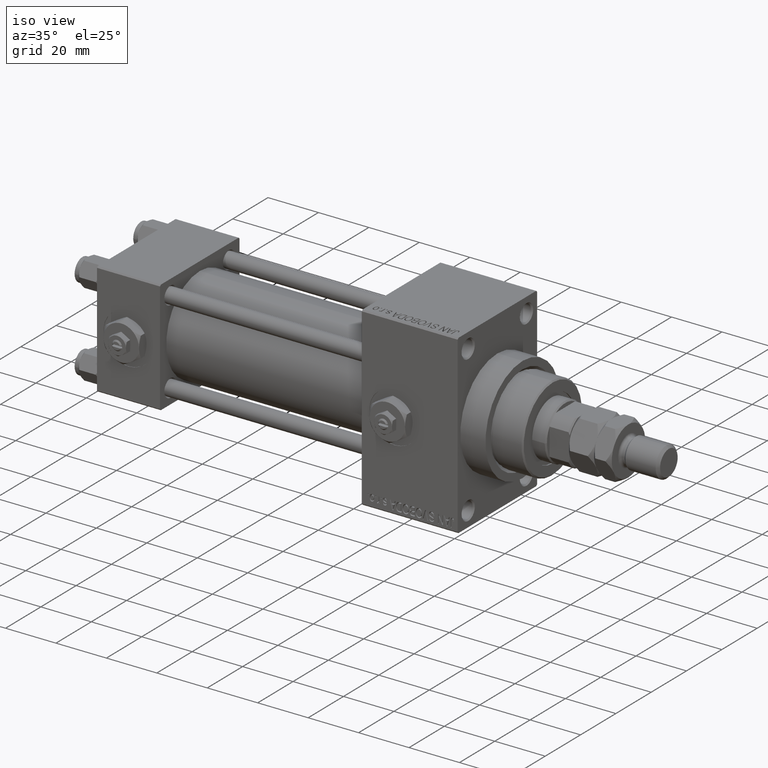
[diagram: clean part render]
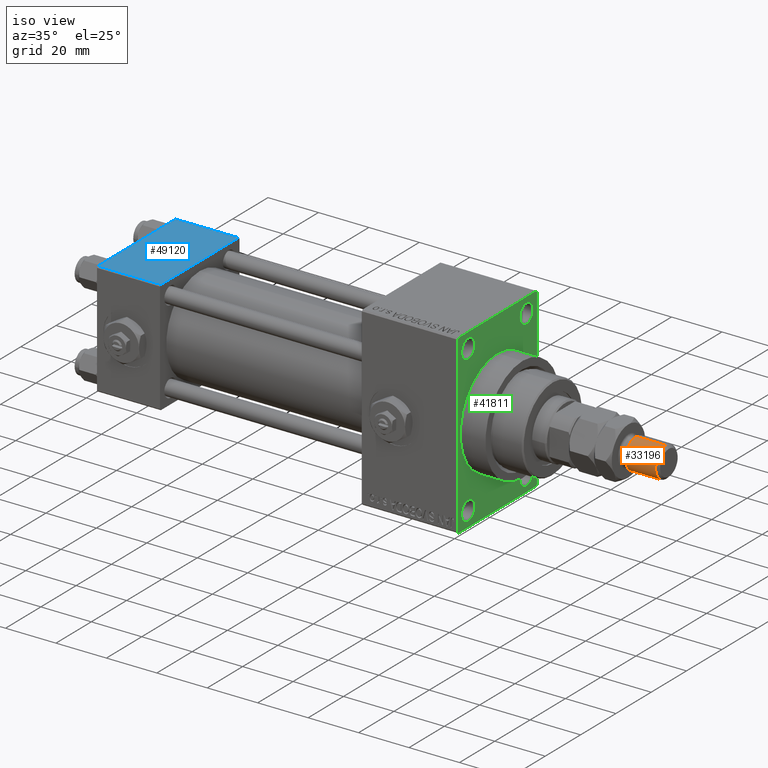
[diagram: same view with three faces highlighted in distinct colors, each labeled with its STEP entity id]
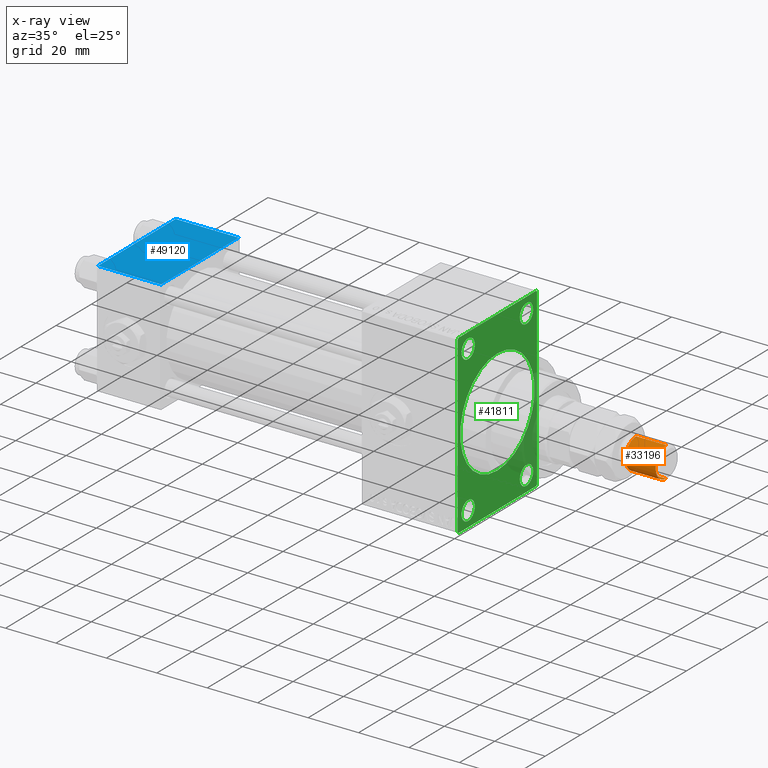
[diagram: x-ray of the same camera — body ghosted, the three highlighted faces saturated]
A machine part, iso view with three faces highlighted in distinct colors.
The next image is the same camera in x-ray (body ghosted, the three faces saturated) — at least one of them is partly hidden behind the body in this view.
Their STEP definitions:

[orange] entity #33196 — the highlighted cylindrical surface (edge-blend (fillet) strip) has radius 6 mm, axis along (-1, -0, 0).
#2152 = DIRECTION ( 'NONE',  ( -0.000000000000000000, -0.000000000000000000, 1.000000000000000000 ) ) ;
#2602 = EDGE_LOOP ( 'NONE', ( #9044, #19886, #22050, #4685 ) ) ;
#4137 = AXIS2_PLACEMENT_3D ( 'NONE', #44471, #5264, #20371 ) ;
#4685 = ORIENTED_EDGE ( 'NONE', *, *, #29041, .T. ) ;
#5264 = DIRECTION ( 'NONE',  ( 0.000000000000000000, 0.000000000000000000, -1.000000000000000000 ) ) ;
#5302 = EDGE_CURVE ( 'NONE', #24596, #40697, #48355, .T. ) ;
#6121 = DIRECTION ( 'NONE',  ( -0.000000000000000000, -0.000000000000000000, -1.000000000000000000 ) ) ;
#9044 = ORIENTED_EDGE ( 'NONE', *, *, #34259, .F. ) ;
#9376 = DIRECTION ( 'NONE',  ( -0.000000000000000000, -0.000000000000000000, -1.000000000000000000 ) ) ;
#9975 = FACE_OUTER_BOUND ( 'NONE', #2602, .T. ) ;
#12683 = CARTESIAN_POINT ( 'NONE',  ( -6.000000000000000888, 0.000000000000000000, 33.00000000000000000 ) ) ;
#17156 = CYLINDRICAL_SURFACE ( 'NONE', #50270, 6.000000000000000888 ) ;
#17622 = EDGE_CURVE ( 'NONE', #40697, #39640, #44470, .T. ) ;
#19085 = CARTESIAN_POINT ( 'NONE',  ( -6.000000000000000888, 0.000000000000000000, 32.00000000000000000 ) ) ;
#19886 = ORIENTED_EDGE ( 'NONE', *, *, #5302, .T. ) ;
#20371 = DIRECTION ( 'NONE',  ( 1.000000000000000000, 0.000000000000000000, 0.000000000000000000 ) ) ;
#22050 = ORIENTED_EDGE ( 'NONE', *, *, #17622, .T. ) ;
#24596 = VERTEX_POINT ( 'NONE', #26364 ) ;
#26364 = CARTESIAN_POINT ( 'NONE',  ( 6.000000000000000888, 7.347880794884120722E-16, 32.00000000000000000 ) ) ;
#28352 = DIRECTION ( 'NONE',  ( -0.000000000000000000, -0.000000000000000000, -1.000000000000000000 ) ) ;
#29041 = EDGE_CURVE ( 'NONE', #39640, #36694, #48585, .T. ) ;
#30568 = AXIS2_PLACEMENT_3D ( 'NONE', #33173, #2152, #48822 ) ;
#33173 = CARTESIAN_POINT ( 'NONE',  ( 0.000000000000000000, 0.000000000000000000, 20.00000000000000711 ) ) ;
#33196 = ADVANCED_FACE ( 'NONE', ( #9975 ), #17156, .T. ) ;
#33529 = DIRECTION ( 'NONE',  ( -1.000000000000000000, 0.000000000000000000, 0.000000000000000000 ) ) ;
#33936 = VECTOR ( 'NONE', #28352, 1000.000000000000000 ) ;
#34259 = EDGE_CURVE ( 'NONE', #24596, #36694, #39139, .T. ) ;
#35174 = CARTESIAN_POINT ( 'NONE',  ( 6.000000000000000888, 7.347880794884120722E-16, 20.00000000000000711 ) ) ;
#35534 = CARTESIAN_POINT ( 'NONE',  ( 6.000000000000000888, 7.347880794884120722E-16, 33.00000000000000000 ) ) ;
#36694 = VERTEX_POINT ( 'NONE', #35174 ) ;
#38139 = CARTESIAN_POINT ( 'NONE',  ( -6.000000000000000888, 0.000000000000000000, 20.00000000000000711 ) ) ;
#39139 = LINE ( 'NONE', #35534, #33936 ) ;
#39640 = VERTEX_POINT ( 'NONE', #38139 ) ;
#40697 = VERTEX_POINT ( 'NONE', #19085 ) ;
#41233 = CARTESIAN_POINT ( 'NONE',  ( 0.000000000000000000, 0.000000000000000000, 33.00000000000000000 ) ) ;
#44470 = LINE ( 'NONE', #12683, #45370 ) ;
#44471 = CARTESIAN_POINT ( 'NONE',  ( 0.000000000000000000, 0.000000000000000000, 32.00000000000000000 ) ) ;
#45370 = VECTOR ( 'NONE', #9376, 1000.000000000000000 ) ;
#48355 = CIRCLE ( 'NONE', #4137, 6.000000000000000888 ) ;
#48585 = CIRCLE ( 'NONE', #30568, 6.000000000000000888 ) ;
#48822 = DIRECTION ( 'NONE',  ( 1.000000000000000000, 0.000000000000000000, 0.000000000000000000 ) ) ;
#50270 = AXIS2_PLACEMENT_3D ( 'NONE', #41233, #6121, #33529 ) ;

[blue] entity #49120 — the highlighted planar face has unit normal (0, 0, -1).
#224 = CARTESIAN_POINT ( 'NONE',  ( 25.00000000000000000, 22.50000000000000000, 22.50000000000000355 ) ) ;
#523 = CARTESIAN_POINT ( 'NONE',  ( 0.000000000000000000, -21.99999999999997868, 22.50000000000000000 ) ) ;
#1207 = ORIENTED_EDGE ( 'NONE', *, *, #7700, .T. ) ;
#1647 = ORIENTED_EDGE ( 'NONE', *, *, #3038, .T. ) ;
#3038 = EDGE_CURVE ( 'NONE', #14910, #11067, #10270, .T. ) ;
#4332 = DIRECTION ( 'NONE',  ( 0.000000000000000000, -1.000000000000000000, -7.709882115452476934E-17 ) ) ;
#5912 = CARTESIAN_POINT ( 'NONE',  ( 25.00000000000000000, -21.99999999999999289, 22.50000000000000000 ) ) ;
#7700 = EDGE_CURVE ( 'NONE', #43389, #14910, #14841, .T. ) ;
#7918 = VECTOR ( 'NONE', #4332, 1000.000000000000000 ) ;
#10270 = LINE ( 'NONE', #5912, #36794 ) ;
#11067 = VERTEX_POINT ( 'NONE', #49467 ) ;
#11573 = VECTOR ( 'NONE', #27113, 1000.000000000000000 ) ;
#11682 = ORIENTED_EDGE ( 'NONE', *, *, #49796, .T. ) ;
#11892 = PLANE ( 'NONE',  #16375 ) ;
#12137 = FACE_OUTER_BOUND ( 'NONE', #15347, .T. ) ;
#14099 = DIRECTION ( 'NONE',  ( 1.000000000000000000, 0.000000000000000000, 0.000000000000000000 ) ) ;
#14584 = CARTESIAN_POINT ( 'NONE',  ( 0.000000000000000000, 22.50000000000000000, 22.50000000000000355 ) ) ;
#14841 = LINE ( 'NONE', #14584, #11573 ) ;
#14910 = VERTEX_POINT ( 'NONE', #523 ) ;
#15347 = EDGE_LOOP ( 'NONE', ( #1207, #1647, #21904, #11682 ) ) ;
#16375 = AXIS2_PLACEMENT_3D ( 'NONE', #30159, #27512, #22225 ) ;
#20991 = DIRECTION ( 'NONE',  ( -1.000000000000000000, 0.000000000000000000, 0.000000000000000000 ) ) ;
#21904 = ORIENTED_EDGE ( 'NONE', *, *, #40251, .F. ) ;
#22225 = DIRECTION ( 'NONE',  ( 0.000000000000000000, 1.000000000000000000, 7.709882115452476934E-17 ) ) ;
#25932 = CARTESIAN_POINT ( 'NONE',  ( 0.000000000000000000, 21.99999999999999289, 22.50000000000000355 ) ) ;
#27113 = DIRECTION ( 'NONE',  ( 0.000000000000000000, -1.000000000000000000, -7.709882115452476934E-17 ) ) ;
#27512 = DIRECTION ( 'NONE',  ( 0.000000000000000000, 7.709882115452476934E-17, -1.000000000000000000 ) ) ;
#27900 = LINE ( 'NONE', #36114, #43406 ) ;
#30159 = CARTESIAN_POINT ( 'NONE',  ( 25.00000000000000000, 22.50000000000000000, 22.50000000000000355 ) ) ;
#34408 = CARTESIAN_POINT ( 'NONE',  ( 25.00000000000000000, 21.99999999999999289, 22.50000000000000355 ) ) ;
#36114 = CARTESIAN_POINT ( 'NONE',  ( 0.000000000000000000, 21.99999999999999289, 22.50000000000000355 ) ) ;
#36794 = VECTOR ( 'NONE', #14099, 1000.000000000000000 ) ;
#38698 = LINE ( 'NONE', #224, #7918 ) ;
#40251 = EDGE_CURVE ( 'NONE', #47219, #11067, #38698, .T. ) ;
#43389 = VERTEX_POINT ( 'NONE', #25932 ) ;
#43406 = VECTOR ( 'NONE', #20991, 1000.000000000000000 ) ;
#47219 = VERTEX_POINT ( 'NONE', #34408 ) ;
#49120 = ADVANCED_FACE ( 'NONE', ( #12137 ), #11892, .F. ) ;
#49467 = CARTESIAN_POINT ( 'NONE',  ( 25.00000000000000000, -21.99999999999997868, 22.50000000000000000 ) ) ;
#49796 = EDGE_CURVE ( 'NONE', #47219, #43389, #27900, .T. ) ;

[green] entity #41811 — the highlighted planar face has unit normal (-1, 0, 0).
#150 = DIRECTION ( 'NONE',  ( -1.000000000000000000, -0.000000000000000000, -0.000000000000000000 ) ) ;
#398 = DIRECTION ( 'NONE',  ( 0.000000000000000000, 0.000000000000000000, 1.000000000000000000 ) ) ;
#498 = CARTESIAN_POINT ( 'NONE',  ( 143.0000000000000284, -21.99999999999998934, 35.00000000000000000 ) ) ;
#934 = CARTESIAN_POINT ( 'NONE',  ( 143.0000000000000284, 22.49999999999999645, 34.50000000000000000 ) ) ;
#967 = ORIENTED_EDGE ( 'NONE', *, *, #32834, .F. ) ;
#1305 = VECTOR ( 'NONE', #38044, 1000.000000000000000 ) ;
#1467 = ORIENTED_EDGE ( 'NONE', *, *, #39226, .T. ) ;
#1561 = CIRCLE ( 'NONE', #26943, 3.750000000000152323 ) ;
#2023 = DIRECTION ( 'NONE',  ( -0.000000000000000000, 0.7071067811865474617, 0.7071067811865474617 ) ) ;
#2653 = DIRECTION ( 'NONE',  ( -1.000000000000000000, 0.000000000000000000, -0.000000000000000000 ) ) ;
#2786 = CIRCLE ( 'NONE', #40451, 3.750000000000159428 ) ;
#3003 = ORIENTED_EDGE ( 'NONE', *, *, #14953, .F. ) ;
#3578 = VECTOR ( 'NONE', #33712, 1000.000000000000114 ) ;
#4120 = CARTESIAN_POINT ( 'NONE',  ( 143.0000000000000284, -16.50000000000000000, -25.24999999999984013 ) ) ;
#4388 = VECTOR ( 'NONE', #26288, 1000.000000000000000 ) ;
#4417 = VERTEX_POINT ( 'NONE', #498 ) ;
#4887 = EDGE_CURVE ( 'NONE', #27919, #45364, #45029, .T. ) ;
#5277 = AXIS2_PLACEMENT_3D ( 'NONE', #6876, #10471, #26078 ) ;
#5282 = CIRCLE ( 'NONE', #20814, 3.750000000000159428 ) ;
#5662 = DIRECTION ( 'NONE',  ( 0.000000000000000000, 0.000000000000000000, -1.000000000000000000 ) ) ;
#5768 = VECTOR ( 'NONE', #9931, 1000.000000000000114 ) ;
#6012 = CIRCLE ( 'NONE', #37916, 21.00000000000000000 ) ;
#6260 = FACE_BOUND ( 'NONE', #33798, .T. ) ;
#6322 = VECTOR ( 'NONE', #19830, 1000.000000000000114 ) ;
#6358 = DIRECTION ( 'NONE',  ( 0.000000000000000000, 0.000000000000000000, 1.000000000000000000 ) ) ;
#6403 = DIRECTION ( 'NONE',  ( 0.000000000000000000, 0.000000000000000000, -1.000000000000000000 ) ) ;
#6852 = CIRCLE ( 'NONE', #35489, 3.750000000000159428 ) ;
#6876 = CARTESIAN_POINT ( 'NONE',  ( 143.0000000000000284, 0.000000000000000000, 0.000000000000000000 ) ) ;
#6917 = CIRCLE ( 'NONE', #5277, 21.00000000000000000 ) ;
#7590 = DIRECTION ( 'NONE',  ( 0.000000000000000000, 0.000000000000000000, 1.000000000000000000 ) ) ;
#7889 = CARTESIAN_POINT ( 'NONE',  ( 143.0000000000000284, -16.50000000000000000, 32.75000000000016342 ) ) ;
#8475 = ORIENTED_EDGE ( 'NONE', *, *, #38219, .T. ) ;
#9262 = DIRECTION ( 'NONE',  ( 1.000000000000000000, 0.000000000000000000, 0.000000000000000000 ) ) ;
#9591 = AXIS2_PLACEMENT_3D ( 'NONE', #36855, #33243, #7590 ) ;
#9818 = DIRECTION ( 'NONE',  ( -1.000000000000000000, -0.000000000000000000, -0.000000000000000000 ) ) ;
#9919 = EDGE_LOOP ( 'NONE', ( #8475, #34555, #967, #38765, #30352, #19529, #22551, #29122 ) ) ;
#9931 = DIRECTION ( 'NONE',  ( 0.000000000000000000, 0.7071067811865474617, -0.7071067811865474617 ) ) ;
#10420 = CARTESIAN_POINT ( 'NONE',  ( 143.0000000000000284, 22.49999999999999645, 35.00000000000000000 ) ) ;
#10471 = DIRECTION ( 'NONE',  ( 1.000000000000000000, 0.000000000000000000, 0.000000000000000000 ) ) ;
#10532 = VECTOR ( 'NONE', #6403, 1000.000000000000000 ) ;
#10574 = AXIS2_PLACEMENT_3D ( 'NONE', #30799, #27710, #19270 ) ;
#10684 = DIRECTION ( 'NONE',  ( 0.000000000000000000, 0.000000000000000000, 1.000000000000000000 ) ) ;
#10862 = PLANE ( 'NONE',  #49751 ) ;
#11905 = CARTESIAN_POINT ( 'NONE',  ( 143.0000000000000284, 21.99999999999999645, 35.00000000000000000 ) ) ;
#12207 = ORIENTED_EDGE ( 'NONE', *, *, #33304, .F. ) ;
#13331 = EDGE_CURVE ( 'NONE', #39930, #18995, #6852, .T. ) ;
#13442 = EDGE_CURVE ( 'NONE', #31925, #4417, #45786, .T. ) ;
#13675 = EDGE_LOOP ( 'NONE', ( #40853, #39155 ) ) ;
#13694 = FACE_BOUND ( 'NONE', #13675, .T. ) ;
#14034 = ORIENTED_EDGE ( 'NONE', *, *, #44239, .T. ) ;
#14113 = LINE ( 'NONE', #29730, #45442 ) ;
#14232 = CARTESIAN_POINT ( 'NONE',  ( 143.0000000000000284, -16.50000000000000000, -32.75000000000015632 ) ) ;
#14869 = CARTESIAN_POINT ( 'NONE',  ( 143.0000000000000284, 0.000000000000000000, 21.00000000000000000 ) ) ;
#14889 = VERTEX_POINT ( 'NONE', #23094 ) ;
#14953 = EDGE_CURVE ( 'NONE', #27095, #49702, #6012, .T. ) ;
#15305 = ORIENTED_EDGE ( 'NONE', *, *, #32179, .T. ) ;
#16147 = CARTESIAN_POINT ( 'NONE',  ( 143.0000000000000284, 16.50000000000000000, 25.24999999999984723 ) ) ;
#16455 = VERTEX_POINT ( 'NONE', #21970 ) ;
#16535 = EDGE_CURVE ( 'NONE', #4417, #19171, #37074, .T. ) ;
#16813 = CARTESIAN_POINT ( 'NONE',  ( 143.0000000000000284, -16.50000000000000000, 29.00000000000000711 ) ) ;
#17374 = EDGE_CURVE ( 'NONE', #16455, #33876, #2786, .T. ) ;
#17546 = LINE ( 'NONE', #49315, #1305 ) ;
#17629 = CIRCLE ( 'NONE', #29870, 3.750000000000155875 ) ;
#17850 = CARTESIAN_POINT ( 'NONE',  ( 143.0000000000000284, 16.50000000000000000, -28.99999999999999289 ) ) ;
#18995 = VERTEX_POINT ( 'NONE', #4120 ) ;
#19171 = VERTEX_POINT ( 'NONE', #30709 ) ;
#19270 = DIRECTION ( 'NONE',  ( 0.000000000000000000, 0.000000000000000000, 1.000000000000000000 ) ) ;
#19529 = ORIENTED_EDGE ( 'NONE', *, *, #40711, .T. ) ;
#19602 = EDGE_LOOP ( 'NONE', ( #15305, #40785 ) ) ;
#19830 = DIRECTION ( 'NONE',  ( 0.000000000000000000, -0.7071067811865474617, 0.7071067811865474617 ) ) ;
#20207 = CIRCLE ( 'NONE', #9591, 3.750000000000152323 ) ;
#20353 = CARTESIAN_POINT ( 'NONE',  ( 143.0000000000000284, 16.50000000000000000, -32.75000000000015632 ) ) ;
#20539 = ORIENTED_EDGE ( 'NONE', *, *, #17374, .T. ) ;
#20814 = AXIS2_PLACEMENT_3D ( 'NONE', #35519, #35273, #398 ) ;
#21769 = CARTESIAN_POINT ( 'NONE',  ( 143.0000000000000284, 22.49999999999999645, 35.00000000000000000 ) ) ;
#21970 = CARTESIAN_POINT ( 'NONE',  ( 143.0000000000000284, 16.50000000000000000, -25.24999999999984013 ) ) ;
#22551 = ORIENTED_EDGE ( 'NONE', *, *, #13442, .T. ) ;
#23094 = CARTESIAN_POINT ( 'NONE',  ( 143.0000000000000284, 21.99999999999999645, -35.00000000000000000 ) ) ;
#23435 = EDGE_LOOP ( 'NONE', ( #24658, #20539 ) ) ;
#23464 = VERTEX_POINT ( 'NONE', #16147 ) ;
#24658 = ORIENTED_EDGE ( 'NONE', *, *, #30922, .T. ) ;
#24863 = CARTESIAN_POINT ( 'NONE',  ( 143.0000000000000284, -16.50000000000000000, 25.24999999999985434 ) ) ;
#25717 = FACE_BOUND ( 'NONE', #46854, .T. ) ;
#25845 = CARTESIAN_POINT ( 'NONE',  ( 143.0000000000000284, 22.49999999999999645, -34.50000000000000000 ) ) ;
#26078 = DIRECTION ( 'NONE',  ( 0.000000000000000000, 0.000000000000000000, -1.000000000000000000 ) ) ;
#26127 = CARTESIAN_POINT ( 'NONE',  ( 143.0000000000000284, -21.99999999999997513, -35.00000000000000000 ) ) ;
#26288 = DIRECTION ( 'NONE',  ( 0.000000000000000000, -1.000000000000000000, 0.000000000000000000 ) ) ;
#26943 = AXIS2_PLACEMENT_3D ( 'NONE', #16813, #150, #43725 ) ;
#27095 = VERTEX_POINT ( 'NONE', #45000 ) ;
#27710 = DIRECTION ( 'NONE',  ( -1.000000000000000000, -0.000000000000000000, -0.000000000000000000 ) ) ;
#27781 = LINE ( 'NONE', #11905, #6322 ) ;
#27919 = VERTEX_POINT ( 'NONE', #48362 ) ;
#28478 = CIRCLE ( 'NONE', #39982, 3.750000000000155875 ) ;
#28637 = VERTEX_POINT ( 'NONE', #7889 ) ;
#28869 = CARTESIAN_POINT ( 'NONE',  ( 143.0000000000000284, -21.99999999999998934, -35.00000000000000000 ) ) ;
#28978 = DIRECTION ( 'NONE',  ( 0.000000000000000000, -1.000000000000000000, 0.000000000000000000 ) ) ;
#29121 = DIRECTION ( 'NONE',  ( -1.000000000000000000, -0.000000000000000000, -0.000000000000000000 ) ) ;
#29122 = ORIENTED_EDGE ( 'NONE', *, *, #16535, .T. ) ;
#29304 = FACE_BOUND ( 'NONE', #19602, .T. ) ;
#29611 = CARTESIAN_POINT ( 'NONE',  ( 143.0000000000000284, -22.50000000000000355, 34.50000000000000000 ) ) ;
#29730 = CARTESIAN_POINT ( 'NONE',  ( 143.0000000000000284, 22.49999999999999645, -35.00000000000000000 ) ) ;
#29870 = AXIS2_PLACEMENT_3D ( 'NONE', #34528, #30168, #6358 ) ;
#30063 = FACE_BOUND ( 'NONE', #23435, .T. ) ;
#30168 = DIRECTION ( 'NONE',  ( -1.000000000000000000, -0.000000000000000000, -0.000000000000000000 ) ) ;
#30352 = ORIENTED_EDGE ( 'NONE', *, *, #43713, .F. ) ;
#30709 = CARTESIAN_POINT ( 'NONE',  ( 143.0000000000000284, -22.50000000000000355, 34.50000000000000000 ) ) ;
#30799 = CARTESIAN_POINT ( 'NONE',  ( 143.0000000000000284, -16.50000000000000000, -28.99999999999999289 ) ) ;
#30922 = EDGE_CURVE ( 'NONE', #33876, #16455, #5282, .T. ) ;
#31437 = DIRECTION ( 'NONE',  ( -1.000000000000000000, -0.000000000000000000, -0.000000000000000000 ) ) ;
#31925 = VERTEX_POINT ( 'NONE', #43288 ) ;
#32179 = EDGE_CURVE ( 'NONE', #23464, #43381, #17629, .T. ) ;
#32629 = CARTESIAN_POINT ( 'NONE',  ( 143.0000000000000284, 22.49999999999999645, -34.50000000000000000 ) ) ;
#32834 = EDGE_CURVE ( 'NONE', #14889, #45364, #14113, .T. ) ;
#33243 = DIRECTION ( 'NONE',  ( -1.000000000000000000, -0.000000000000000000, -0.000000000000000000 ) ) ;
#33304 = EDGE_CURVE ( 'NONE', #49702, #27095, #6917, .T. ) ;
#33712 = DIRECTION ( 'NONE',  ( -0.000000000000000000, -0.7071067811865474617, -0.7071067811865474617 ) ) ;
#33798 = EDGE_LOOP ( 'NONE', ( #12207, #3003 ) ) ;
#33876 = VERTEX_POINT ( 'NONE', #20353 ) ;
#34372 = VERTEX_POINT ( 'NONE', #934 ) ;
#34528 = CARTESIAN_POINT ( 'NONE',  ( 143.0000000000000284, 16.50000000000000000, 29.00000000000000355 ) ) ;
#34555 = ORIENTED_EDGE ( 'NONE', *, *, #4887, .T. ) ;
#35273 = DIRECTION ( 'NONE',  ( -1.000000000000000000, -0.000000000000000000, -0.000000000000000000 ) ) ;
#35489 = AXIS2_PLACEMENT_3D ( 'NONE', #39404, #31437, #50692 ) ;
#35519 = CARTESIAN_POINT ( 'NONE',  ( 143.0000000000000284, 16.50000000000000000, -28.99999999999999289 ) ) ;
#36517 = VECTOR ( 'NONE', #2023, 1000.000000000000114 ) ;
#36855 = CARTESIAN_POINT ( 'NONE',  ( 143.0000000000000284, -16.50000000000000000, 29.00000000000000711 ) ) ;
#37074 = LINE ( 'NONE', #29611, #3578 ) ;
#37274 = FACE_OUTER_BOUND ( 'NONE', #9919, .T. ) ;
#37902 = EDGE_CURVE ( 'NONE', #14889, #49199, #44342, .T. ) ;
#37916 = AXIS2_PLACEMENT_3D ( 'NONE', #43857, #9262, #5662 ) ;
#38044 = DIRECTION ( 'NONE',  ( 0.000000000000000000, 0.000000000000000000, -1.000000000000000000 ) ) ;
#38219 = EDGE_CURVE ( 'NONE', #19171, #27919, #17546, .T. ) ;
#38765 = ORIENTED_EDGE ( 'NONE', *, *, #37902, .T. ) ;
#39155 = ORIENTED_EDGE ( 'NONE', *, *, #47404, .T. ) ;
#39226 = EDGE_CURVE ( 'NONE', #42756, #28637, #20207, .T. ) ;
#39404 = CARTESIAN_POINT ( 'NONE',  ( 143.0000000000000284, -16.50000000000000000, -28.99999999999999289 ) ) ;
#39930 = VERTEX_POINT ( 'NONE', #14232 ) ;
#39982 = AXIS2_PLACEMENT_3D ( 'NONE', #44910, #9818, #41078 ) ;
#40451 = AXIS2_PLACEMENT_3D ( 'NONE', #17850, #29121, #10684 ) ;
#40711 = EDGE_CURVE ( 'NONE', #34372, #31925, #27781, .T. ) ;
#40785 = ORIENTED_EDGE ( 'NONE', *, *, #42549, .T. ) ;
#40853 = ORIENTED_EDGE ( 'NONE', *, *, #13331, .T. ) ;
#41078 = DIRECTION ( 'NONE',  ( 0.000000000000000000, 0.000000000000000000, 1.000000000000000000 ) ) ;
#41811 = ADVANCED_FACE ( 'NONE', ( #25717, #13694, #30063, #29304, #6260, #37274 ), #10862, .F. ) ;
#42549 = EDGE_CURVE ( 'NONE', #43381, #23464, #28478, .T. ) ;
#42756 = VERTEX_POINT ( 'NONE', #24863 ) ;
#43288 = CARTESIAN_POINT ( 'NONE',  ( 143.0000000000000284, 21.99999999999999645, 35.00000000000000000 ) ) ;
#43381 = VERTEX_POINT ( 'NONE', #44918 ) ;
#43713 = EDGE_CURVE ( 'NONE', #34372, #49199, #45614, .T. ) ;
#43725 = DIRECTION ( 'NONE',  ( 0.000000000000000000, 0.000000000000000000, 1.000000000000000000 ) ) ;
#43857 = CARTESIAN_POINT ( 'NONE',  ( 143.0000000000000284, 0.000000000000000000, 0.000000000000000000 ) ) ;
#44239 = EDGE_CURVE ( 'NONE', #28637, #42756, #1561, .T. ) ;
#44342 = LINE ( 'NONE', #25845, #36517 ) ;
#44910 = CARTESIAN_POINT ( 'NONE',  ( 143.0000000000000284, 16.50000000000000000, 29.00000000000000355 ) ) ;
#44918 = CARTESIAN_POINT ( 'NONE',  ( 143.0000000000000284, 16.50000000000000000, 32.75000000000016342 ) ) ;
#45000 = CARTESIAN_POINT ( 'NONE',  ( 143.0000000000000284, 2.571758278209441661E-15, -21.00000000000000000 ) ) ;
#45029 = LINE ( 'NONE', #28869, #5768 ) ;
#45364 = VERTEX_POINT ( 'NONE', #26127 ) ;
#45442 = VECTOR ( 'NONE', #28978, 1000.000000000000000 ) ;
#45467 = CARTESIAN_POINT ( 'NONE',  ( 143.0000000000000284, 0.000000000000000000, 0.000000000000000000 ) ) ;
#45614 = LINE ( 'NONE', #21769, #10532 ) ;
#45786 = LINE ( 'NONE', #10420, #4388 ) ;
#46854 = EDGE_LOOP ( 'NONE', ( #1467, #14034 ) ) ;
#47404 = EDGE_CURVE ( 'NONE', #18995, #39930, #50661, .T. ) ;
#48362 = CARTESIAN_POINT ( 'NONE',  ( 143.0000000000000284, -22.50000000000000355, -34.49999999999998579 ) ) ;
#49199 = VERTEX_POINT ( 'NONE', #32629 ) ;
#49315 = CARTESIAN_POINT ( 'NONE',  ( 143.0000000000000284, -22.50000000000000355, 35.00000000000000000 ) ) ;
#49702 = VERTEX_POINT ( 'NONE', #14869 ) ;
#49751 = AXIS2_PLACEMENT_3D ( 'NONE', #45467, #2653, #49815 ) ;
#49815 = DIRECTION ( 'NONE',  ( -0.000000000000000000, 0.000000000000000000, 1.000000000000000000 ) ) ;
#50661 = CIRCLE ( 'NONE', #10574, 3.750000000000159428 ) ;
#50692 = DIRECTION ( 'NONE',  ( 0.000000000000000000, 0.000000000000000000, 1.000000000000000000 ) ) ;